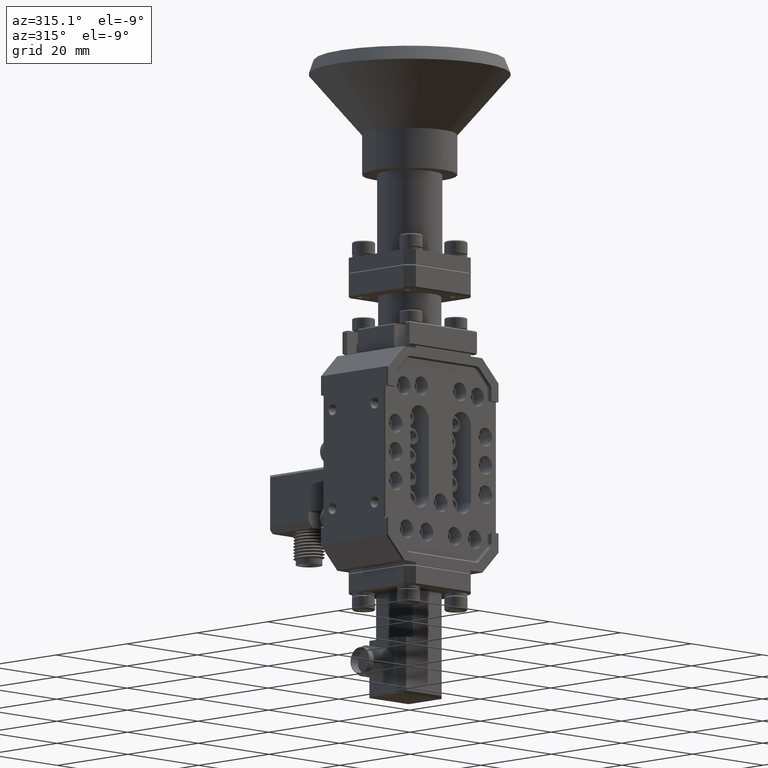
[diagram: clean part render]
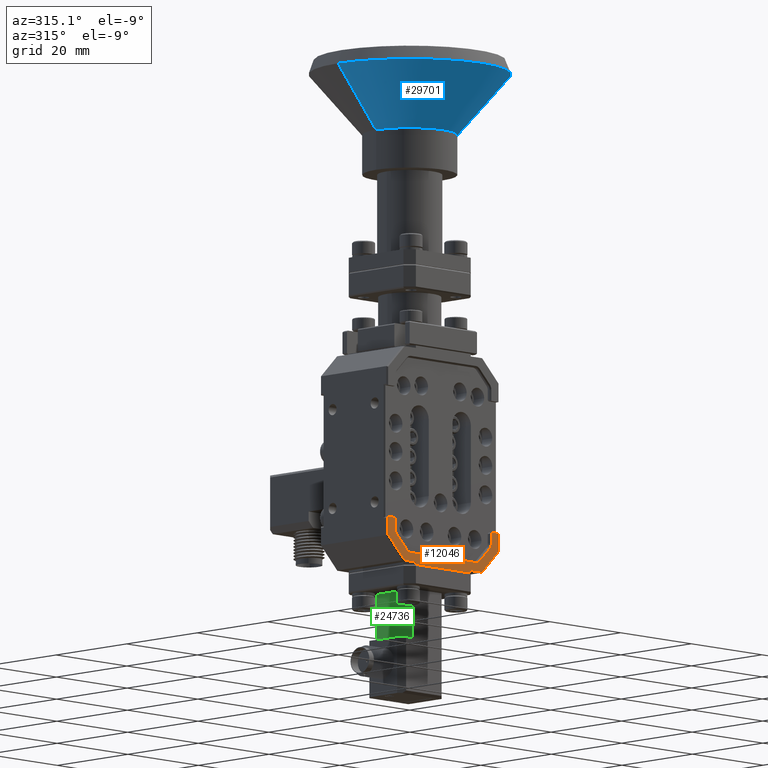
[diagram: same view with three faces highlighted in distinct colors, each labeled with its STEP entity id]
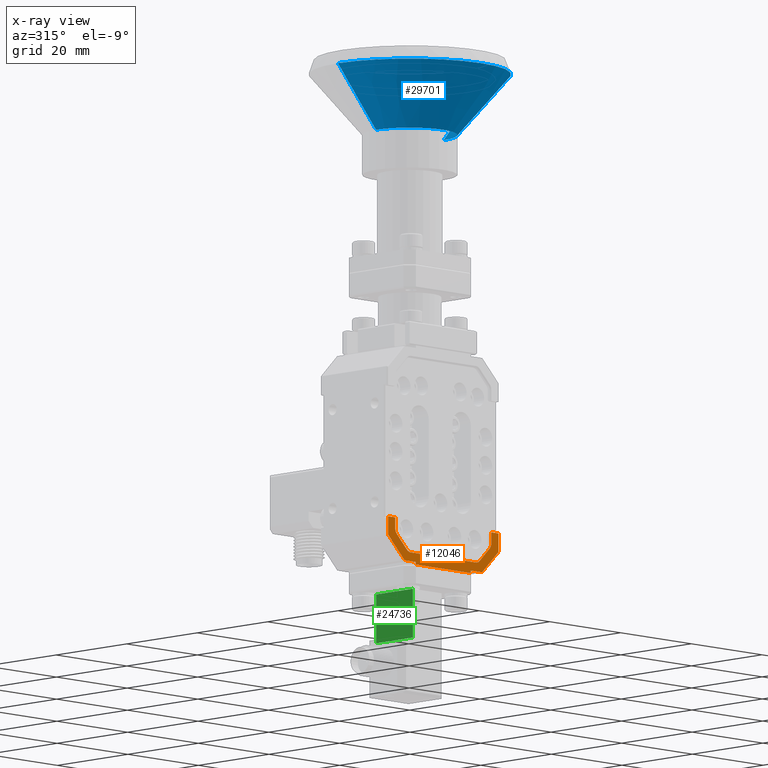
[diagram: x-ray of the same camera — body ghosted, the three highlighted faces saturated]
A machine part, auxiliary view with three faces highlighted in distinct colors.
The next image is the same camera in x-ray (body ghosted, the three faces saturated) — at least one of them is partly hidden behind the body in this view.
Their STEP definitions:

[orange] entity #12046 — the highlighted planar face has unit normal (-0, -1, -0).
#392 = CARTESIAN_POINT ( 'NONE',  ( 0.5350000000000011413, -0.3749999999999998335, -3.837867965640354040 ) ) ;
#628 = EDGE_CURVE ( 'NONE', #26418, #20538, #10270, .T. ) ;
#1332 = VERTEX_POINT ( 'NONE', #39319 ) ;
#1628 = CARTESIAN_POINT ( 'NONE',  ( -0.4308578643762698834, -0.3749999999999996669, -4.079999999996319460 ) ) ;
#1794 = AXIS2_PLACEMENT_3D ( 'NONE', #10018, #38894, #53875 ) ;
#1959 = CARTESIAN_POINT ( 'NONE',  ( 0.5350000000000011413, -0.3749999999999998335, -3.837867965640354040 ) ) ;
#2253 = CARTESIAN_POINT ( 'NONE',  ( 1.533615558943223463E-16, -0.3749999999999997780, -4.079999999996319460 ) ) ;
#2574 = LINE ( 'NONE', #2253, #35908 ) ;
#2970 = CARTESIAN_POINT ( 'NONE',  ( 0.4052943725152281518, -0.3749999999999998335, -3.992426406867512156 ) ) ;
#4449 = CARTESIAN_POINT ( 'NONE',  ( -0.6250000000000009992, -0.3749999999999996114, -3.749999999996318500 ) ) ;
#5268 = DIRECTION ( 'NONE',  ( 1.829362495757319982E-16, 1.000000000000000000, 1.734723475976807480E-18 ) ) ;
#5462 = VECTOR ( 'NONE', #54719, 39.37007874015748143 ) ;
#6345 = ORIENTED_EDGE ( 'NONE', *, *, #17778, .T. ) ;
#6826 = VERTEX_POINT ( 'NONE', #20260 ) ;
#7664 = CARTESIAN_POINT ( 'NONE',  ( 0.3628679656440350620, -0.3749999999999998335, -4.009999999996319175 ) ) ;
#7676 = CARTESIAN_POINT ( 'NONE',  ( 1.533615558943223710E-16, -0.3749999999999997780, -3.224999999996318145 ) ) ;
#8317 = CARTESIAN_POINT ( 'NONE',  ( 0.6150000000000005462, -0.3749999999999998890, -3.749999999996318500 ) ) ;
#9301 = ORIENTED_EDGE ( 'NONE', *, *, #40691, .F. ) ;
#9809 = CARTESIAN_POINT ( 'NONE',  ( -0.3050000000000003819, -0.3749999999999996669, -4.079999999996319460 ) ) ;
#9896 = EDGE_CURVE ( 'NONE', #45732, #39892, #16668, .T. ) ;
#9981 = VERTEX_POINT ( 'NONE', #15418 ) ;
#10018 = CARTESIAN_POINT ( 'NONE',  ( -0.3628679656440361168, -0.3749999999999996669, -3.949999999996318678 ) ) ;
#10208 = LINE ( 'NONE', #42900, #38800 ) ;
#10270 = LINE ( 'NONE', #39156, #15116 ) ;
#10663 = VERTEX_POINT ( 'NONE', #55545 ) ;
#11724 = LINE ( 'NONE', #31713, #26208 ) ;
#11934 = DIRECTION ( 'NONE',  ( 1.000000000000000000, -1.829362495757319736E-16, -2.496924709490279638E-32 ) ) ;
#12046 = ADVANCED_FACE ( 'NONE', ( #50577 ), #46409, .T. ) ;
#12104 = ORIENTED_EDGE ( 'NONE', *, *, #45994, .T. ) ;
#12420 = DIRECTION ( 'NONE',  ( -1.829362495757319736E-16, -1.000000000000000000, -1.734723475976807480E-18 ) ) ;
#12514 = CARTESIAN_POINT ( 'NONE',  ( -0.5174264068711943443, -0.3749999999999996669, -3.880294372511546630 ) ) ;
#12607 = CARTESIAN_POINT ( 'NONE',  ( -0.5350000000000014744, -0.3749999999999996669, -3.749999999996318500 ) ) ;
#12707 = VERTEX_POINT ( 'NONE', #43280 ) ;
#13471 = ORIENTED_EDGE ( 'NONE', *, *, #40847, .T. ) ;
#14118 = CARTESIAN_POINT ( 'NONE',  ( -0.3628679656440361168, -0.3749999999999996669, -4.009999999996319175 ) ) ;
#14172 = CARTESIAN_POINT ( 'NONE',  ( 0.4052943725152281518, -0.3749999999999998335, -3.992426406867512156 ) ) ;
#14182 = CARTESIAN_POINT ( 'NONE',  ( -0.4750000000000009215, -0.3749999999999996669, -3.837867965640354040 ) ) ;
#14224 = ORIENTED_EDGE ( 'NONE', *, *, #24184, .T. ) ;
#15116 = VECTOR ( 'NONE', #34723, 39.37007874015748143 ) ;
#15218 = EDGE_CURVE ( 'NONE', #45819, #45732, #27447, .T. ) ;
#15418 = CARTESIAN_POINT ( 'NONE',  ( -0.6150000000000013234, -0.3749999999999996114, -3.895857864372587631 ) ) ;
#16422 = LINE ( 'NONE', #35802, #31088 ) ;
#16668 = LINE ( 'NONE', #20824, #54246 ) ;
#17137 = CARTESIAN_POINT ( 'NONE',  ( 0.4750000000000006439, -0.3749999999999998335, -3.837867965640354040 ) ) ;
#17431 = DIRECTION ( 'NONE',  ( 0.7071067811865459074, -1.281288278664877544E-16, -0.7071067811865492381 ) ) ;
#17432 = DIRECTION ( 'NONE',  ( 1.000000000000000000, 0.000000000000000000, 0.000000000000000000 ) ) ;
#17778 = EDGE_CURVE ( 'NONE', #20538, #10663, #60238, .T. ) ;
#18186 = EDGE_CURVE ( 'NONE', #59231, #25687, #25776, .T. ) ;
#18189 = EDGE_CURVE ( 'NONE', #44788, #59231, #2574, .T. ) ;
#18261 = VECTOR ( 'NONE', #49949, 39.37007874015748143 ) ;
#18894 = LINE ( 'NONE', #61832, #43522 ) ;
#20260 = CARTESIAN_POINT ( 'NONE',  ( 0.5350000000000012523, -0.3749999999999998335, -3.749999999996318500 ) ) ;
#20538 = VERTEX_POINT ( 'NONE', #12514 ) ;
#20604 = AXIS2_PLACEMENT_3D ( 'NONE', #45746, #21623, #60414 ) ;
#20824 = CARTESIAN_POINT ( 'NONE',  ( 0.6150000000000005462, -0.3749999999999998890, -3.224999999996318145 ) ) ;
#21174 = LINE ( 'NONE', #58688, #33383 ) ;
#21623 = DIRECTION ( 'NONE',  ( 1.829362495757319982E-16, 1.000000000000000000, 1.734723475976807480E-18 ) ) ;
#21971 = DIRECTION ( 'NONE',  ( 1.000000000000000000, -1.829362495757319736E-16, -2.496924709490279638E-32 ) ) ;
#22571 = EDGE_CURVE ( 'NONE', #12707, #45819, #39139, .T. ) ;
#22597 = CARTESIAN_POINT ( 'NONE',  ( 1.533615558943223463E-16, -0.3749999999999997780, -4.079999999996319460 ) ) ;
#22659 = LINE ( 'NONE', #2970, #56472 ) ;
#22992 = VECTOR ( 'NONE', #56477, 39.37007874015748143 ) ;
#23215 = CARTESIAN_POINT ( 'NONE',  ( 0.3050000000000007150, -0.3749999999999998335, -4.099999999996319033 ) ) ;
#23427 = ORIENTED_EDGE ( 'NONE', *, *, #61129, .T. ) ;
#23527 = DIRECTION ( 'NONE',  ( 1.000000000000000000, -1.829362495757319736E-16, -2.496924709490279638E-32 ) ) ;
#23732 = VERTEX_POINT ( 'NONE', #14172 ) ;
#24184 = EDGE_CURVE ( 'NONE', #58447, #9981, #35888, .T. ) ;
#24390 = VERTEX_POINT ( 'NONE', #23215 ) ;
#25231 = ORIENTED_EDGE ( 'NONE', *, *, #18189, .T. ) ;
#25687 = VERTEX_POINT ( 'NONE', #42647 ) ;
#25776 = LINE ( 'NONE', #40985, #5462 ) ;
#26208 = VECTOR ( 'NONE', #17431, 39.37007874015748143 ) ;
#26418 = VERTEX_POINT ( 'NONE', #35798 ) ;
#27412 = ORIENTED_EDGE ( 'NONE', *, *, #54466, .F. ) ;
#27447 = LINE ( 'NONE', #45851, #30122 ) ;
#27677 = CIRCLE ( 'NONE', #20604, 0.06000000000000051820 ) ;
#27744 = AXIS2_PLACEMENT_3D ( 'NONE', #14182, #5268, #49421 ) ;
#27824 = CARTESIAN_POINT ( 'NONE',  ( -0.5350000000000014744, -0.3749999999999996669, -3.749999999996318500 ) ) ;
#28255 = VERTEX_POINT ( 'NONE', #7664 ) ;
#28645 = DIRECTION ( 'NONE',  ( -1.000000000000000000, 1.829362495757319736E-16, 2.496924709490279638E-32 ) ) ;
#29574 = ORIENTED_EDGE ( 'NONE', *, *, #61643, .T. ) ;
#30122 = VECTOR ( 'NONE', #40455, 39.37007874015748854 ) ;
#31088 = VECTOR ( 'NONE', #50431, 39.37007874015748143 ) ;
#31713 = CARTESIAN_POINT ( 'NONE',  ( -0.6429289321881366259, -0.3749999999999996114, -3.867928932184451885 ) ) ;
#32323 = ORIENTED_EDGE ( 'NONE', *, *, #18186, .T. ) ;
#33181 = DIRECTION ( 'NONE',  ( 2.465190328815662439E-32, -1.734723475976807480E-18, 1.000000000000000000 ) ) ;
#33383 = VECTOR ( 'NONE', #11934, 39.37007874015748143 ) ;
#34395 = CARTESIAN_POINT ( 'NONE',  ( 0.4308578643762674409, -0.3749999999999998335, -4.079999999996319460 ) ) ;
#34723 = DIRECTION ( 'NONE',  ( -0.7071067811865457964, 1.281288278664877298E-16, 0.7071067811865492381 ) ) ;
#35798 = CARTESIAN_POINT ( 'NONE',  ( -0.4052943725152293730, -0.3749999999999996669, -3.992426406867512156 ) ) ;
#35802 = CARTESIAN_POINT ( 'NONE',  ( -0.6250000000000009992, -0.3749999999999996114, -4.099999999996319033 ) ) ;
#35888 = LINE ( 'NONE', #41582, #36406 ) ;
#35908 = VECTOR ( 'NONE', #21971, 39.37007874015748143 ) ;
#36236 = ORIENTED_EDGE ( 'NONE', *, *, #58234, .F. ) ;
#36406 = VECTOR ( 'NONE', #61019, 39.37007874015748143 ) ;
#37705 = VERTEX_POINT ( 'NONE', #27824 ) ;
#38014 = ORIENTED_EDGE ( 'NONE', *, *, #54633, .T. ) ;
#38800 = VECTOR ( 'NONE', #28645, 39.37007874015748143 ) ;
#38894 = DIRECTION ( 'NONE',  ( 1.829362495757319982E-16, 1.000000000000000000, 1.734723475976807480E-18 ) ) ;
#39139 = LINE ( 'NONE', #22597, #46319 ) ;
#39156 = CARTESIAN_POINT ( 'NONE',  ( -0.5174264068711943443, -0.3749999999999996669, -3.880294372511546630 ) ) ;
#39319 = CARTESIAN_POINT ( 'NONE',  ( 0.5174264068711936781, -0.3749999999999998335, -3.880294372511547518 ) ) ;
#39876 = ORIENTED_EDGE ( 'NONE', *, *, #628, .T. ) ;
#39892 = VERTEX_POINT ( 'NONE', #8317 ) ;
#40455 = DIRECTION ( 'NONE',  ( 0.7071067811865489050, -1.305820973331817151E-16, 0.7071067811865460184 ) ) ;
#40691 = EDGE_CURVE ( 'NONE', #6826, #39892, #21174, .T. ) ;
#40847 = EDGE_CURVE ( 'NONE', #24390, #12707, #18894, .T. ) ;
#40937 = ORIENTED_EDGE ( 'NONE', *, *, #59461, .T. ) ;
#40985 = CARTESIAN_POINT ( 'NONE',  ( -0.3050000000000003819, -0.3749999999999996669, -3.224999999996318145 ) ) ;
#41582 = CARTESIAN_POINT ( 'NONE',  ( -0.6150000000000013234, -0.3749999999999996114, -3.224999999996318145 ) ) ;
#41996 = DIRECTION ( 'NONE',  ( -0.7071067811865487940, 1.305820973331816905E-16, -0.7071067811865461294 ) ) ;
#42647 = CARTESIAN_POINT ( 'NONE',  ( -0.3050000000000003819, -0.3749999999999996669, -4.099999999996319033 ) ) ;
#42880 = EDGE_CURVE ( 'NONE', #1332, #23732, #22659, .T. ) ;
#42900 = CARTESIAN_POINT ( 'NONE',  ( -0.3628679656440361168, -0.3749999999999996669, -4.009999999996319175 ) ) ;
#42921 = AXIS2_PLACEMENT_3D ( 'NONE', #17137, #61000, #17432 ) ;
#43280 = CARTESIAN_POINT ( 'NONE',  ( 0.3050000000000007150, -0.3749999999999998335, -4.079999999996319460 ) ) ;
#43522 = VECTOR ( 'NONE', #33181, 39.37007874015748143 ) ;
#44416 = CIRCLE ( 'NONE', #1794, 0.06000000000000051820 ) ;
#44540 = CARTESIAN_POINT ( 'NONE',  ( -0.6150000000000013234, -0.3749999999999996114, -3.749999999996318500 ) ) ;
#44788 = VERTEX_POINT ( 'NONE', #1628 ) ;
#45142 = LINE ( 'NONE', #1959, #18261 ) ;
#45732 = VERTEX_POINT ( 'NONE', #52226 ) ;
#45746 = CARTESIAN_POINT ( 'NONE',  ( 0.3628679656440350620, -0.3749999999999998335, -3.949999999996318678 ) ) ;
#45819 = VERTEX_POINT ( 'NONE', #34395 ) ;
#45851 = CARTESIAN_POINT ( 'NONE',  ( 0.6429289321881336283, -0.3749999999999998890, -3.867928932184454549 ) ) ;
#45994 = EDGE_CURVE ( 'NONE', #6826, #61016, #45142, .T. ) ;
#46319 = VECTOR ( 'NONE', #50583, 39.37007874015748143 ) ;
#46409 = PLANE ( 'NONE',  #57363 ) ;
#47215 = ORIENTED_EDGE ( 'NONE', *, *, #53952, .T. ) ;
#48025 = CIRCLE ( 'NONE', #42921, 0.06000000000000051820 ) ;
#48676 = VERTEX_POINT ( 'NONE', #14118 ) ;
#48942 = ORIENTED_EDGE ( 'NONE', *, *, #50562, .T. ) ;
#49421 = DIRECTION ( 'NONE',  ( 1.000000000000000000, 0.000000000000000000, 9.106159978880799298E-15 ) ) ;
#49949 = DIRECTION ( 'NONE',  ( -1.258004290252050079E-15, 1.734723475977037436E-18, -1.000000000000000000 ) ) ;
#50431 = DIRECTION ( 'NONE',  ( -1.000000000000000000, 1.829362495757319736E-16, 2.496924709490279638E-32 ) ) ;
#50562 = EDGE_CURVE ( 'NONE', #23732, #28255, #27677, .T. ) ;
#50577 = FACE_OUTER_BOUND ( 'NONE', #54287, .T. ) ;
#50583 = DIRECTION ( 'NONE',  ( 1.000000000000000000, -1.829362495757319736E-16, -2.496924709490279638E-32 ) ) ;
#50603 = ORIENTED_EDGE ( 'NONE', *, *, #9896, .T. ) ;
#52226 = CARTESIAN_POINT ( 'NONE',  ( 0.6150000000000005462, -0.3749999999999998890, -3.895857864372587631 ) ) ;
#53087 = LINE ( 'NONE', #4449, #54135 ) ;
#53875 = DIRECTION ( 'NONE',  ( 1.000000000000000000, 0.000000000000000000, 0.000000000000000000 ) ) ;
#53952 = EDGE_CURVE ( 'NONE', #28255, #48676, #10208, .T. ) ;
#54135 = VECTOR ( 'NONE', #23527, 39.37007874015748143 ) ;
#54246 = VECTOR ( 'NONE', #59283, 39.37007874015748143 ) ;
#54287 = EDGE_LOOP ( 'NONE', ( #25231, #32323, #36236, #13471, #59144, #59292, #50603, #9301, #12104, #38014, #62827, #48942, #47215, #23427, #39876, #6345, #40937, #27412, #14224, #29574 ) ) ;
#54466 = EDGE_CURVE ( 'NONE', #58447, #37705, #53087, .T. ) ;
#54633 = EDGE_CURVE ( 'NONE', #61016, #1332, #48025, .T. ) ;
#54719 = DIRECTION ( 'NONE',  ( -2.465190328815662439E-32, 1.734723475976807480E-18, -1.000000000000000000 ) ) ;
#55545 = CARTESIAN_POINT ( 'NONE',  ( -0.5350000000000013634, -0.3749999999999996669, -3.837867965640354040 ) ) ;
#56157 = LINE ( 'NONE', #12607, #22992 ) ;
#56472 = VECTOR ( 'NONE', #41996, 39.37007874015748854 ) ;
#56477 = DIRECTION ( 'NONE',  ( -6.290021451260273074E-16, -1.734723475976692502E-18, 1.000000000000000000 ) ) ;
#57363 = AXIS2_PLACEMENT_3D ( 'NONE', #7676, #12420, #62024 ) ;
#58234 = EDGE_CURVE ( 'NONE', #24390, #25687, #16422, .T. ) ;
#58447 = VERTEX_POINT ( 'NONE', #44540 ) ;
#58688 = CARTESIAN_POINT ( 'NONE',  ( 0.5250000000000007994, -0.3749999999999998335, -3.749999999996318500 ) ) ;
#59144 = ORIENTED_EDGE ( 'NONE', *, *, #22571, .T. ) ;
#59231 = VERTEX_POINT ( 'NONE', #9809 ) ;
#59283 = DIRECTION ( 'NONE',  ( 2.465190328815662439E-32, -1.734723475976807480E-18, 1.000000000000000000 ) ) ;
#59292 = ORIENTED_EDGE ( 'NONE', *, *, #15218, .T. ) ;
#59461 = EDGE_CURVE ( 'NONE', #10663, #37705, #56157, .T. ) ;
#60238 = CIRCLE ( 'NONE', #27744, 0.06000000000000051820 ) ;
#60414 = DIRECTION ( 'NONE',  ( 1.000000000000000000, 0.000000000000000000, 0.000000000000000000 ) ) ;
#61000 = DIRECTION ( 'NONE',  ( 1.829362495757319982E-16, 1.000000000000000000, 1.734723475976807480E-18 ) ) ;
#61016 = VERTEX_POINT ( 'NONE', #392 ) ;
#61019 = DIRECTION ( 'NONE',  ( -2.465190328815662439E-32, 1.734723475976807480E-18, -1.000000000000000000 ) ) ;
#61129 = EDGE_CURVE ( 'NONE', #48676, #26418, #44416, .T. ) ;
#61643 = EDGE_CURVE ( 'NONE', #9981, #44788, #11724, .T. ) ;
#61832 = CARTESIAN_POINT ( 'NONE',  ( 0.3050000000000007150, -0.3749999999999998335, -3.224999999996318145 ) ) ;
#62024 = DIRECTION ( 'NONE',  ( 1.000000000000000000, -1.829362495757319736E-16, -2.496924709490279638E-32 ) ) ;
#62827 = ORIENTED_EDGE ( 'NONE', *, *, #42880, .T. ) ;

[blue] entity #29701 — the highlighted conical surface has half-angle 41.18 deg.
#2221 = ORIENTED_EDGE ( 'NONE', *, *, #24900, .T. ) ;
#2232 = DIRECTION ( 'NONE',  ( 1.224646799147353207E-16, 0.000000000000000000, 1.000000000000000000 ) ) ;
#3126 = DIRECTION ( 'NONE',  ( 1.000000000000000000, 0.000000000000000000, -1.816388293830222154E-16 ) ) ;
#3225 = CARTESIAN_POINT ( 'NONE',  ( 0.7994999999999999885, 0.000000000000000000, -0.1099002899963156671 ) ) ;
#3744 = DIRECTION ( 'NONE',  ( 1.224646799147353207E-16, 0.000000000000000000, 1.000000000000000000 ) ) ;
#5012 = AXIS2_PLACEMENT_3D ( 'NONE', #27292, #3744, #3126 ) ;
#6020 = CIRCLE ( 'NONE', #5012, 0.3759999999647114510 ) ;
#6709 = FACE_OUTER_BOUND ( 'NONE', #37435, .T. ) ;
#8373 = VECTOR ( 'NONE', #23599, 39.37007874015748143 ) ;
#15180 = LINE ( 'NONE', #34546, #23670 ) ;
#15610 = CARTESIAN_POINT ( 'NONE',  ( 1.948535166980293937E-16, 0.000000000000000000, -0.1099002899963155561 ) ) ;
#16979 = VERTEX_POINT ( 'NONE', #3225 ) ;
#18585 = ORIENTED_EDGE ( 'NONE', *, *, #50541, .F. ) ;
#19449 = AXIS2_PLACEMENT_3D ( 'NONE', #15610, #30222, #40668 ) ;
#22277 = CARTESIAN_POINT ( 'NONE',  ( 1.948535166980293937E-16, 0.000000000000000000, -0.1099002899963155561 ) ) ;
#23599 = DIRECTION ( 'NONE',  ( -0.6584277793867978623, 8.063414724957417877E-17, 0.7526439127049193711 ) ) ;
#23670 = VECTOR ( 'NONE', #34230, 39.37007874015748143 ) ;
#24541 = LINE ( 'NONE', #38816, #8373 ) ;
#24900 = EDGE_CURVE ( 'NONE', #33446, #44707, #6020, .T. ) ;
#27292 = CARTESIAN_POINT ( 'NONE',  ( 1.355684006660631871E-16, 0.000000000000000000, -0.5939999999963156974 ) ) ;
#29701 = ADVANCED_FACE ( 'NONE', ( #6709 ), #52984, .T. ) ;
#30222 = DIRECTION ( 'NONE',  ( 1.224646799147353207E-16, 0.000000000000000000, 1.000000000000000000 ) ) ;
#30874 = EDGE_CURVE ( 'NONE', #33446, #62290, #24541, .T. ) ;
#31142 = DIRECTION ( 'NONE',  ( 1.000000000000000000, 0.000000000000000000, -1.281354593651155498E-16 ) ) ;
#33446 = VERTEX_POINT ( 'NONE', #35292 ) ;
#34230 = DIRECTION ( 'NONE',  ( 0.6584277793867980844, 0.000000000000000000, 0.7526439127049191491 ) ) ;
#34546 = CARTESIAN_POINT ( 'NONE',  ( 0.7994999999999999885, 0.000000000000000000, -0.1099002899963156671 ) ) ;
#35292 = CARTESIAN_POINT ( 'NONE',  ( -0.3759999999647113400, 4.604671964361888149E-17, -0.5939999999963155863 ) ) ;
#37435 = EDGE_LOOP ( 'NONE', ( #51095, #2221, #46414, #18585 ) ) ;
#38816 = CARTESIAN_POINT ( 'NONE',  ( -0.7994999999999997664, 9.791051159183087549E-17, -0.1099002899963154589 ) ) ;
#39788 = CIRCLE ( 'NONE', #49944, 0.7994999999999998774 ) ;
#40668 = DIRECTION ( 'NONE',  ( 1.000000000000000000, 0.000000000000000000, -1.281354593651155498E-16 ) ) ;
#44707 = VERTEX_POINT ( 'NONE', #57943 ) ;
#46414 = ORIENTED_EDGE ( 'NONE', *, *, #54912, .T. ) ;
#49944 = AXIS2_PLACEMENT_3D ( 'NONE', #22277, #2232, #31142 ) ;
#50350 = CARTESIAN_POINT ( 'NONE',  ( -0.7994999999999997664, 9.791051159183087549E-17, -0.1099002899963154589 ) ) ;
#50541 = EDGE_CURVE ( 'NONE', #62290, #16979, #39788, .T. ) ;
#51095 = ORIENTED_EDGE ( 'NONE', *, *, #30874, .F. ) ;
#52984 = CONICAL_SURFACE ( 'NONE', #19449, 0.7994999999999998774, 0.7187279169351729058 ) ;
#54912 = EDGE_CURVE ( 'NONE', #44707, #16979, #15180, .T. ) ;
#57943 = CARTESIAN_POINT ( 'NONE',  ( 0.3759999999647116176, 0.000000000000000000, -0.5939999999963158084 ) ) ;
#62290 = VERTEX_POINT ( 'NONE', #50350 ) ;

[green] entity #24736 — the highlighted planar face has unit normal (1, -0, -0).
#603 = ORIENTED_EDGE ( 'NONE', *, *, #16709, .T. ) ;
#820 = CARTESIAN_POINT ( 'NONE',  ( -0.1699999999999999289, 0.2049999999999999323, -4.259999999996319175 ) ) ;
#1758 = ORIENTED_EDGE ( 'NONE', *, *, #57198, .F. ) ;
#1867 = CARTESIAN_POINT ( 'NONE',  ( -0.1700000000000006228, -0.3750000000000001110, -4.259999999996319175 ) ) ;
#2493 = DIRECTION ( 'NONE',  ( 1.000000000000000000, -1.219510603611695387E-15, -2.677042622698257288E-32 ) ) ;
#3788 = ORIENTED_EDGE ( 'NONE', *, *, #42125, .T. ) ;
#4232 = DIRECTION ( 'NONE',  ( 1.219510603611695387E-15, 1.000000000000000000, 1.734723475976807480E-18 ) ) ;
#4549 = CARTESIAN_POINT ( 'NONE',  ( -0.1700000000000006228, -0.3750000000000001110, -4.259999999996319175 ) ) ;
#5678 = VECTOR ( 'NONE', #42042, 39.37007874015748143 ) ;
#6918 = CARTESIAN_POINT ( 'NONE',  ( -0.1699999999999999289, 0.2049999999999999045, -4.649999999996319744 ) ) ;
#8695 = VECTOR ( 'NONE', #9678, 39.37007874015748143 ) ;
#9637 = VERTEX_POINT ( 'NONE', #50447 ) ;
#9678 = DIRECTION ( 'NONE',  ( 1.733803673831970087E-31, 1.202227762411778009E-16, 1.000000000000000000 ) ) ;
#10995 = VECTOR ( 'NONE', #4232, 39.37007874015748143 ) ;
#13464 = LINE ( 'NONE', #37316, #5678 ) ;
#15987 = ORIENTED_EDGE ( 'NONE', *, *, #60929, .T. ) ;
#16479 = DIRECTION ( 'NONE',  ( -1.219510603611695387E-15, -1.000000000000000000, -1.734723475976807480E-18 ) ) ;
#16709 = EDGE_CURVE ( 'NONE', #9637, #51588, #37909, .T. ) ;
#24736 = ADVANCED_FACE ( 'NONE', ( #50814 ), #45370, .F. ) ;
#26279 = AXIS2_PLACEMENT_3D ( 'NONE', #1867, #2493, #16479 ) ;
#26567 = EDGE_LOOP ( 'NONE', ( #603, #15987, #1758, #3788 ) ) ;
#27216 = VECTOR ( 'NONE', #44629, 39.37007874015748143 ) ;
#27746 = CARTESIAN_POINT ( 'NONE',  ( -0.1700000000000004008, -0.2050000000000001821, -4.649999999996319744 ) ) ;
#30722 = VERTEX_POINT ( 'NONE', #27746 ) ;
#37316 = CARTESIAN_POINT ( 'NONE',  ( -0.1700000000000006228, -0.3750000000000001110, -4.649999999996319744 ) ) ;
#37909 = LINE ( 'NONE', #4549, #10995 ) ;
#42042 = DIRECTION ( 'NONE',  ( 1.219510603611695387E-15, 1.000000000000000000, 1.734723475976807480E-18 ) ) ;
#42125 = EDGE_CURVE ( 'NONE', #30722, #9637, #61845, .T. ) ;
#44629 = DIRECTION ( 'NONE',  ( -1.733803673831970087E-31, -1.202227762411778009E-16, -1.000000000000000000 ) ) ;
#45370 = PLANE ( 'NONE',  #26279 ) ;
#47427 = CARTESIAN_POINT ( 'NONE',  ( -0.1699999999999999289, 0.2049999999999999323, -4.259999999996319175 ) ) ;
#48105 = CARTESIAN_POINT ( 'NONE',  ( -0.1700000000000004008, -0.2050000000000001266, -4.259999999996319175 ) ) ;
#50374 = LINE ( 'NONE', #820, #27216 ) ;
#50447 = CARTESIAN_POINT ( 'NONE',  ( -0.1700000000000004008, -0.2050000000000001266, -4.259999999996319175 ) ) ;
#50814 = FACE_OUTER_BOUND ( 'NONE', #26567, .T. ) ;
#51588 = VERTEX_POINT ( 'NONE', #47427 ) ;
#57198 = EDGE_CURVE ( 'NONE', #30722, #60517, #13464, .T. ) ;
#60517 = VERTEX_POINT ( 'NONE', #6918 ) ;
#60929 = EDGE_CURVE ( 'NONE', #51588, #60517, #50374, .T. ) ;
#61845 = LINE ( 'NONE', #48105, #8695 ) ;